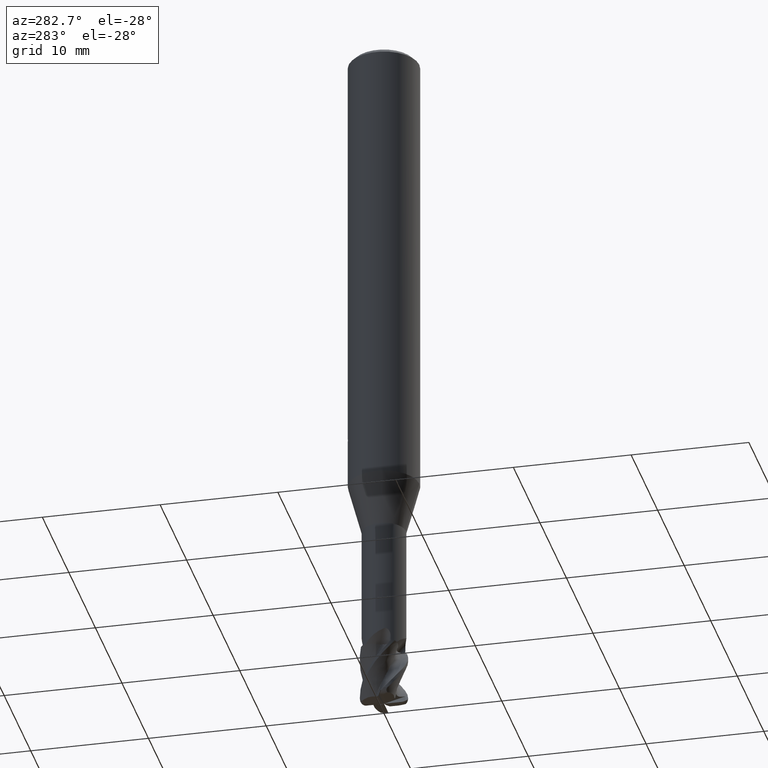
[diagram: clean part render]
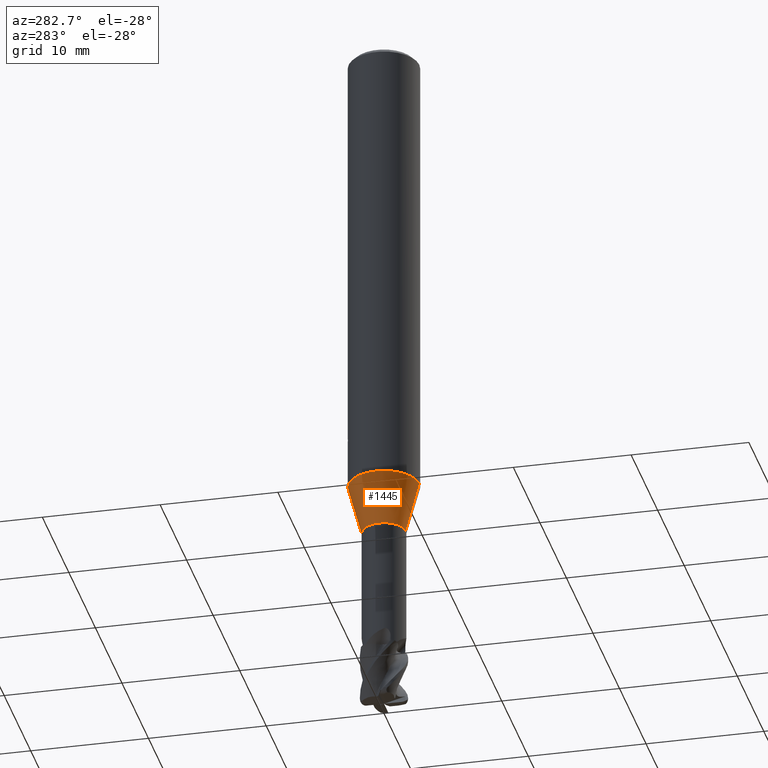
[diagram: same view with one face highlighted and labeled with its STEP entity id]
A machine part, auxiliary view. The second image highlights one B-rep face of the part: STEP entity #1445.
In plain terms, the highlighted conical surface has half-angle 15 deg.
Its self-contained STEP definition (entity closure, byte-faithful):
#515=VERTEX_POINT('',#1494);
#829=EDGE_CURVE('',#1443,#1033,#1839,.T.);
#893=EDGE_CURVE('',#515,#1033,#1908,.T.);
#1003=VERTEX_POINT('',#2031);
#1033=VERTEX_POINT('',#2063);
#1037=EDGE_CURVE('',#515,#1003,#2068,.T.);
#1303=EDGE_CURVE('',#1003,#1443,#2359,.T.);
#1443=VERTEX_POINT('',#2511);
#1445=ADVANCED_FACE('',(#2513),#2514,.T.);
#1494=CARTESIAN_POINT('',(2.26546052425371E-016,-1.84995,-44.0));
#1839=LINE('',#4346,#4347);
#1908=CIRCLE('',#4895,1.84995);
#2031=CARTESIAN_POINT('',(3.67375783114944E-016,-2.99995,-39.708));
#2063=CARTESIAN_POINT('',(0.0,1.84995,-44.0));
#2068=LINE('',#5645,#5646);
#2359=CIRCLE('',#7005,2.99995);
#2511=CARTESIAN_POINT('',(0.0,2.99995,-39.708));
#2513=FACE_OUTER_BOUND('',#7773,.T.);
#2514=CONICAL_SURFACE('',#7774,2.42495,0.261791141549813);
#4346=CARTESIAN_POINT('',(-2.96960917770157E-016,2.42495,-41.854));
#4347=VECTOR('',#8266,1.0);
#4895=AXIS2_PLACEMENT_3D('',#8319,#8320,#8321);
#5645=CARTESIAN_POINT('',(2.96960917770157E-016,-2.42495,-41.854));
#5646=VECTOR('',#8528,1.0);
#7005=AXIS2_PLACEMENT_3D('',#8829,#8830,#8831);
#7773=EDGE_LOOP('',(#8976,#8977,#8978,#8979));
#7774=AXIS2_PLACEMENT_3D('',#8980,#8981,#8982);
#8266=DIRECTION('',(3.16941692797633E-017,-0.258811079828517,-0.965927960542605));
#8319=CARTESIAN_POINT('',(0.0,0.0,-44.0));
#8320=DIRECTION('',(0.0,0.0,-1.0));
#8321=DIRECTION('',(0.0,1.0,0.0));
#8528=DIRECTION('',(3.16941692797633E-017,-0.258811079828517,0.965927960542605));
#8829=CARTESIAN_POINT('',(0.0,0.0,-39.708));
#8830=DIRECTION('',(0.0,0.0,-1.0));
#8831=DIRECTION('',(0.0,1.0,0.0));
#8976=ORIENTED_EDGE('',*,*,#829,.T.);
#8977=ORIENTED_EDGE('',*,*,#893,.F.);
#8978=ORIENTED_EDGE('',*,*,#1037,.T.);
#8979=ORIENTED_EDGE('',*,*,#1303,.T.);
#8980=CARTESIAN_POINT('',(0.0,0.0,-41.854));
#8981=DIRECTION('',(-0.0,-0.0,1.0));
#8982=DIRECTION('',(0.0,1.0,0.0));